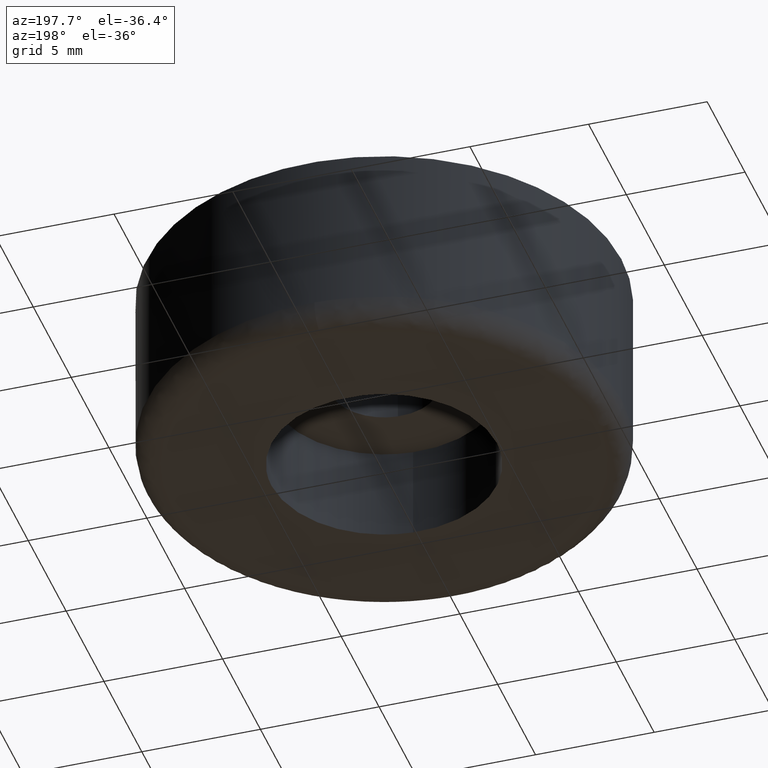
[diagram: clean part render]
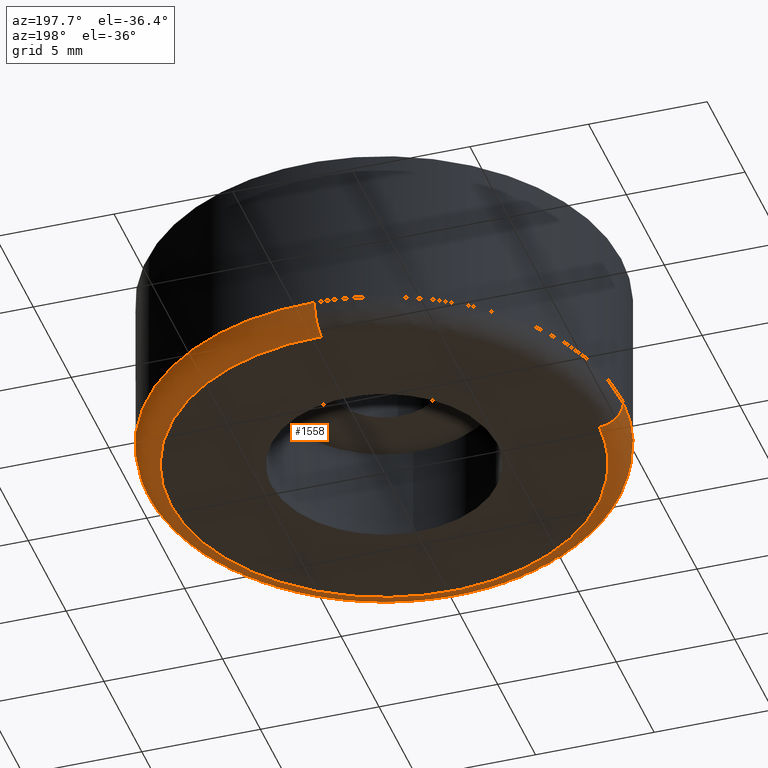
[diagram: same view with one face highlighted and labeled with its STEP entity id]
A machine part, auxiliary view. The second image highlights one B-rep face of the part: STEP entity #1558.
In plain terms, the highlighted face is a freeform B-spline surface patch.
Its self-contained STEP definition (entity closure, byte-faithful):
#1259=CARTESIAN_POINT('',(9.759689999604271,-2.179094103425024,0.999999999999983));
#1260=VERTEX_POINT('',#1259);
#1261=CARTESIAN_POINT('',(0.784585152188208,-9.969173794198387,1.000000000000015));
#1262=VERTEX_POINT('',#1261);
#1263=CARTESIAN_POINT('',(9.759689999604271,-2.179094103425024,0.999999999999983));
#1264=CARTESIAN_POINT('',(8.149781639381867,-9.389524574907334,1.0));
#1265=CARTESIAN_POINT('',(0.784585152188208,-9.969173794198387,1.000000000000015));
#1273=(BOUNDED_CURVE()B_SPLINE_CURVE(2,(#1263,#1264,#1265),.UNSPECIFIED.,.F.,.U.)B_SPLINE_CURVE_WITH_KNOTS((3,3),(0.537286560370751,0.736331400453952),.UNSPECIFIED.)CURVE()GEOMETRIC_REPRESENTATION_ITEM()RATIONAL_B_SPLINE_CURVE((0.925662740296602,0.762027680026814,0.969723564491107))REPRESENTATION_ITEM(''));
#1274=EDGE_CURVE('',#1260,#1262,#1273,.T.);
#1332=CARTESIAN_POINT('',(10.0,0.0,1.0));
#1333=VERTEX_POINT('',#1332);
#1334=CARTESIAN_POINT('',(10.0,0.0,1.0));
#1335=CARTESIAN_POINT('',(10.0,-1.102797717711615,1.0));
#1336=CARTESIAN_POINT('',(9.759689999604271,-2.179094103425024,0.999999999999983));
#1344=(BOUNDED_CURVE()B_SPLINE_CURVE(2,(#1334,#1335,#1336),.UNSPECIFIED.,.F.,.U.)B_SPLINE_CURVE_WITH_KNOTS((3,3),(0.500000000000000,0.537286560370751),.UNSPECIFIED.)CURVE()GEOMETRIC_REPRESENTATION_ITEM()RATIONAL_B_SPLINE_CURVE((1.0,0.956316077258115,0.925662740296602))REPRESENTATION_ITEM(''));
#1345=EDGE_CURVE('',#1333,#1260,#1344,.T.);
#1347=CARTESIAN_POINT('',(-0.251300954433966,9.996841892832983,0.999999999972321));
#1348=VERTEX_POINT('',#1347);
#1349=CARTESIAN_POINT('',(-0.251300954433966,9.996841892832983,0.999999999972321));
#1350=CARTESIAN_POINT('',(-0.125670321234388,10.0,1.0));
#1351=CARTESIAN_POINT('',(0.0,10.0,1.0));
#1352=CARTESIAN_POINT('',(10.000000000000002,10.000000000000002,1.0));
#1353=CARTESIAN_POINT('',(10.0,0.0,1.0));
#1361=(BOUNDED_CURVE()B_SPLINE_CURVE(2,(#1349,#1350,#1351,#1352,#1353),.UNSPECIFIED.,.F.,.U.)B_SPLINE_CURVE_WITH_KNOTS((3,2,3),(0.245579891769787,0.250000000000000,0.500000000000000),.UNSPECIFIED.)CURVE()GEOMETRIC_REPRESENTATION_ITEM()RATIONAL_B_SPLINE_CURVE((0.989826157681529,0.994821521091796,1.0,0.707106781186548,1.0))REPRESENTATION_ITEM(''));
#1362=EDGE_CURVE('',#1348,#1333,#1361,.T.);
#1379=CARTESIAN_POINT('',(-9.996841892832979,-0.251300954434183,0.999999999972386));
#1380=VERTEX_POINT('',#1379);
#1394=CARTESIAN_POINT('',(0.784585152188208,-9.969173794198387,1.000000000000015));
#1395=CARTESIAN_POINT('',(0.392898154061947,-10.000000000000002,1.0));
#1396=CARTESIAN_POINT('',(0.0,-10.0,1.0));
#1397=CARTESIAN_POINT('',(-9.751778761804932,-10.0,1.0));
#1398=CARTESIAN_POINT('',(-9.996841892832979,-0.251300954434183,0.999999999972386));
#1406=(BOUNDED_CURVE()B_SPLINE_CURVE(2,(#1394,#1395,#1396,#1397,#1398),.UNSPECIFIED.,.F.,.U.)B_SPLINE_CURVE_WITH_KNOTS((3,2,3),(0.736331400453952,0.750000000000000,0.995579891769780),.UNSPECIFIED.)CURVE()GEOMETRIC_REPRESENTATION_ITEM()RATIONAL_B_SPLINE_CURVE((0.969723564491107,0.983986239529144,1.0,0.712285260094760,0.989826157681513))REPRESENTATION_ITEM(''));
#1407=EDGE_CURVE('',#1262,#1380,#1406,.T.);
#1461=CARTESIAN_POINT('',(-0.251239795509014,9.994408968936835,1.069724185944040));
#1462=CARTESIAN_POINT('',(9.743169173427820,10.245648764445850,1.069724185944040));
#1463=CARTESIAN_POINT('',(9.994408968936835,0.251239795509015,1.069724185944040));
#1464=CARTESIAN_POINT('',(10.245648764445855,-9.743169173427820,1.069724185944040));
#1465=CARTESIAN_POINT('',(0.251239795509017,-9.994408968936835,1.069724185944040));
#1466=CARTESIAN_POINT('',(-9.743169173427820,-10.245648764445855,1.069724185944040));
#1467=CARTESIAN_POINT('',(-9.994408968936835,-0.251239795509018,1.069724185944040));
#1468=CARTESIAN_POINT('',(-0.253254548995661,10.074556583594571,-0.077335715574734));
#1469=CARTESIAN_POINT('',(9.821302034598908,10.327811132590231,-0.077335715574734));
#1470=CARTESIAN_POINT('',(10.074556583594571,0.253254548995662,-0.077335715574734));
#1471=CARTESIAN_POINT('',(10.327811132590236,-9.821302034598904,-0.077335715574734));
#1472=CARTESIAN_POINT('',(0.253254548995665,-10.074556583594571,-0.077335715574734));
#1473=CARTESIAN_POINT('',(-9.821302034598904,-10.327811132590236,-0.077335715574734));
#1474=CARTESIAN_POINT('',(-10.074556583594571,-0.253254548995665,-0.077335715574734));
#1475=CARTESIAN_POINT('',(-0.224428071709306,8.927829001883639,0.002407651483938));
#1476=CARTESIAN_POINT('',(8.703400930174334,9.152257073592947,0.002407651483938));
#1477=CARTESIAN_POINT('',(8.927829001883639,0.224428071709307,0.002407651483938));
#1478=CARTESIAN_POINT('',(9.152257073592951,-8.703400930174331,0.002407651483938));
#1479=CARTESIAN_POINT('',(0.224428071709309,-8.927829001883639,0.002407651483938));
#1480=CARTESIAN_POINT('',(-8.703400930174331,-9.152257073592951,0.002407651483938));
#1481=CARTESIAN_POINT('',(-8.927829001883639,-0.224428071709310,0.002407651483938));
#1489=(BOUNDED_SURFACE()B_SPLINE_SURFACE(2,2,((#1461,#1468,#1475),(#1462,#1469,#1476),(#1463,#1470,#1477),(#1464,#1471,#1478),(#1465,#1472,#1479),(#1466,#1473,#1480),(#1467,#1474,#1481)),.UNSPECIFIED.,.F.,.F.,.U.)B_SPLINE_SURFACE_WITH_KNOTS((3,2,2,3),(3,3),(0.0,16.564510221192489,33.129020442384977,49.693530663577477),(0.0,1.822370362282378),.UNSPECIFIED.)GEOMETRIC_REPRESENTATION_ITEM()RATIONAL_B_SPLINE_SURFACE(((0.910892941964346,0.599412927742117,0.915966633662292),(0.644098576197953,0.423848945937333,0.647686218003221),(0.910892941964346,0.599412927742117,0.915966633662292),(0.644098576197953,0.423848945937333,0.647686218003221),(0.910892941964346,0.599412927742117,0.915966633662292),(0.644098576197953,0.423848945937333,0.647686218003221),(0.910892941964346,0.599412927742117,0.915966633662292)))REPRESENTATION_ITEM('')SURFACE());
#1490=CARTESIAN_POINT('',(-0.226170859030829,8.997157703990462,1.874299E-016));
#1491=VERTEX_POINT('',#1490);
#1492=CARTESIAN_POINT('',(9.0,0.0,0.0));
#1493=VERTEX_POINT('',#1492);
#1494=CARTESIAN_POINT('',(-0.226170859030829,8.997157703990462,1.874299E-016));
#1495=CARTESIAN_POINT('',(-0.113103289140123,8.999999999999998,0.0));
#1496=CARTESIAN_POINT('',(0.0,9.0,0.0));
#1497=CARTESIAN_POINT('',(9.0,9.0,0.0));
#1498=CARTESIAN_POINT('',(9.0,0.0,0.0));
#1506=(BOUNDED_CURVE()B_SPLINE_CURVE(2,(#1494,#1495,#1496,#1497,#1498),.UNSPECIFIED.,.F.,.U.)B_SPLINE_CURVE_WITH_KNOTS((3,2,3),(0.245579891768653,0.250000000000000,0.500000000000000),.UNSPECIFIED.)CURVE()GEOMETRIC_REPRESENTATION_ITEM()RATIONAL_B_SPLINE_CURVE((0.989826157678966,0.994821521090467,1.0,0.707106781186547,1.0))REPRESENTATION_ITEM(''));
#1507=EDGE_CURVE('',#1491,#1493,#1506,.T.);
#1508=ORIENTED_EDGE('',*,*,#1507,.F.);
#1509=CARTESIAN_POINT('',(-0.251300954433967,9.996841892832983,0.999999999972321));
#1510=CARTESIAN_POINT('',(-0.251300954431984,9.996841892777656,8.832976E-010));
#1511=CARTESIAN_POINT('',(-0.226170859030829,8.997157703990462,1.874299E-016));
#1519=(BOUNDED_CURVE()B_SPLINE_CURVE(2,(#1509,#1510,#1511),.UNSPECIFIED.,.F.,.U.)B_SPLINE_CURVE_WITH_KNOTS((3,3),(-1.723441281927773,-0.263586879842010),.UNSPECIFIED.)CURVE()GEOMETRIC_REPRESENTATION_ITEM()RATIONAL_B_SPLINE_CURVE((0.883897567118577,0.626638727408863,0.888510408734575))REPRESENTATION_ITEM(''));
#1520=EDGE_CURVE('',#1348,#1491,#1519,.T.);
#1521=ORIENTED_EDGE('',*,*,#1520,.F.);
#1522=ORIENTED_EDGE('',*,*,#1362,.T.);
#1523=ORIENTED_EDGE('',*,*,#1345,.T.);
#1524=ORIENTED_EDGE('',*,*,#1274,.T.);
#1525=ORIENTED_EDGE('',*,*,#1407,.T.);
#1526=CARTESIAN_POINT('',(-8.997157704003575,-0.226170859032163,1.874299E-016));
#1527=VERTEX_POINT('',#1526);
#1528=CARTESIAN_POINT('',(-9.996841892832981,-0.251300954434183,0.999999999972386));
#1529=CARTESIAN_POINT('',(-9.996841892777784,-0.251300954431986,9.095835E-010));
#1530=CARTESIAN_POINT('',(-8.997157704003575,-0.226170859032163,1.874299E-016));
#1538=(BOUNDED_CURVE()B_SPLINE_CURVE(2,(#1528,#1529,#1530),.UNSPECIFIED.,.F.,.U.)B_SPLINE_CURVE_WITH_KNOTS((3,3),(-1.723441281927906,-0.263586879869215),.UNSPECIFIED.)CURVE()GEOMETRIC_REPRESENTATION_ITEM()RATIONAL_B_SPLINE_CURVE((0.883897567118624,0.626638727413633,0.888510408724815))REPRESENTATION_ITEM(''));
#1539=EDGE_CURVE('',#1380,#1527,#1538,.T.);
#1540=ORIENTED_EDGE('',*,*,#1539,.T.);
#1541=CARTESIAN_POINT('',(9.0,0.0,0.0));
#1542=CARTESIAN_POINT('',(9.0,-9.0,0.0));
#1543=CARTESIAN_POINT('',(0.0,-9.0,0.0));
#1544=CARTESIAN_POINT('',(-8.776600885565950,-9.000000000000002,0.0));
#1545=CARTESIAN_POINT('',(-8.997157704003575,-0.226170859032163,1.874299E-016));
#1553=(BOUNDED_CURVE()B_SPLINE_CURVE(2,(#1541,#1542,#1543,#1544,#1545),.UNSPECIFIED.,.F.,.U.)B_SPLINE_CURVE_WITH_KNOTS((3,2,3),(0.500000000000000,0.750000000000000,0.995579891768614),.UNSPECIFIED.)CURVE()GEOMETRIC_REPRESENTATION_ITEM()RATIONAL_B_SPLINE_CURVE((1.0,0.707106781186547,1.0,0.712285260096126,0.989826157678878))REPRESENTATION_ITEM(''));
#1554=EDGE_CURVE('',#1493,#1527,#1553,.T.);
#1555=ORIENTED_EDGE('',*,*,#1554,.F.);
#1556=EDGE_LOOP('',(#1508,#1521,#1522,#1523,#1524,#1525,#1540,#1555));
#1557=FACE_OUTER_BOUND('',#1556,.T.);
#1558=ADVANCED_FACE('',(#1557),#1489,.T.);